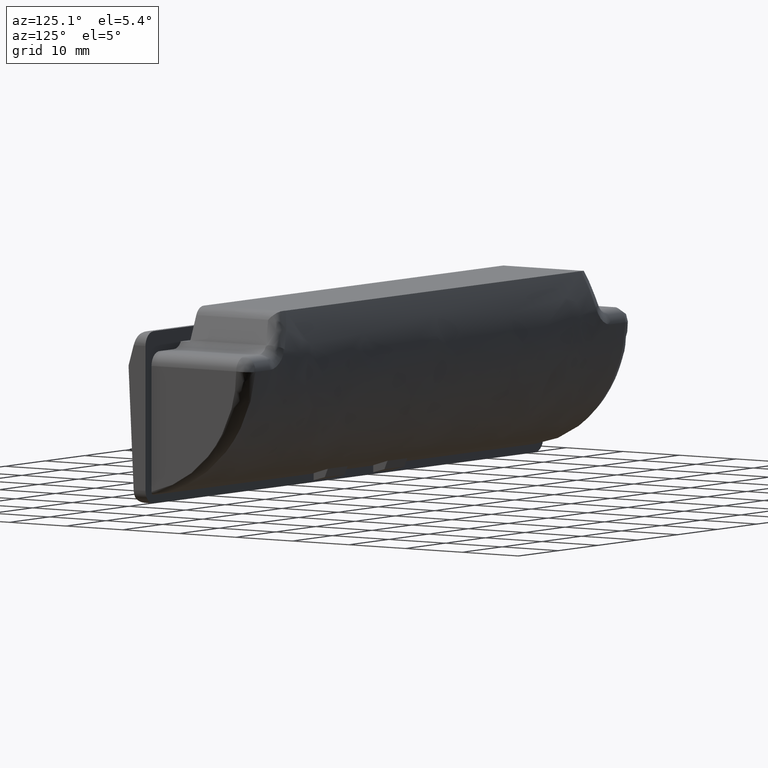
[diagram: clean part render]
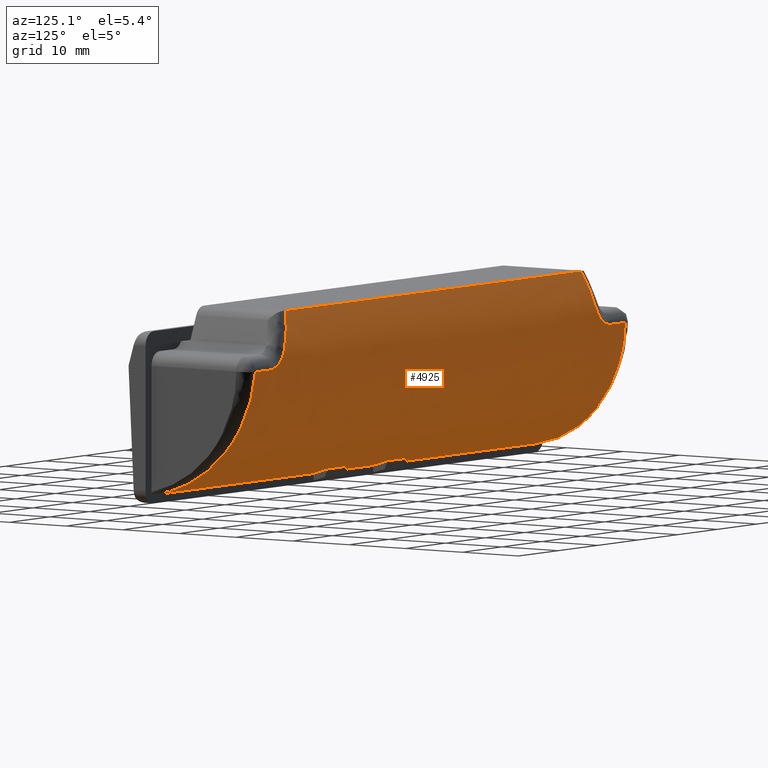
[diagram: same view with one face highlighted and labeled with its STEP entity id]
A machine part, auxiliary view. The second image highlights one B-rep face of the part: STEP entity #4925.
In plain terms, the highlighted face is a freeform B-spline surface patch.
Its self-contained STEP definition (entity closure, byte-faithful):
#2792=CARTESIAN_POINT('',(-47.999998401367399,0.0,-11.023720000000200));
#2793=VERTEX_POINT('',#2792);
#2807=CARTESIAN_POINT('',(-46.500000000000000,16.969111950679348,7.638888888888761));
#2808=VERTEX_POINT('',#2807);
#2827=CARTESIAN_POINT('',(-47.999998401367399,0.0,-11.023720000000200));
#2828=CARTESIAN_POINT('',(-47.874998534586453,2.248673816632060,-10.682558965602020));
#2829=CARTESIAN_POINT('',(-47.749998667805933,4.438089436433053,-9.954217447426700));
#2830=CARTESIAN_POINT('',(-47.499998934244751,8.447948616097063,-7.806491091659477));
#2831=CARTESIAN_POINT('',(-47.374999067464103,10.267491834275280,-6.387588487352834));
#2832=CARTESIAN_POINT('',(-47.124999333902927,13.327661002867540,-3.022018134561161));
#2833=CARTESIAN_POINT('',(-46.999999467122286,14.567599847390429,-1.076106064304717));
#2834=CARTESIAN_POINT('',(-46.749999733561097,16.325344698811499,3.119371522013153));
#2835=CARTESIAN_POINT('',(-46.624999866780591,16.842756035749950,5.367995019118455));
#2836=CARTESIAN_POINT('',(-46.499999999999993,16.969111950679359,7.638888888888809));
#2837=B_SPLINE_CURVE_WITH_KNOTS('',3,(#2827,#2828,#2829,#2830,#2831,#2832,#2833,#2834,#2835,#2836),.UNSPECIFIED.,.F.,.U.,(4,2,2,2,4),(0.0,0.250000000000000,0.500000000000000,0.750000000000000,1.0),.UNSPECIFIED.);
#2838=EDGE_CURVE('',#2793,#2808,#2837,.T.);
#2920=CARTESIAN_POINT('',(46.500000000000000,16.969111950679348,7.638888888888761));
#2921=VERTEX_POINT('',#2920);
#3010=CARTESIAN_POINT('',(47.999998401405797,0.0,-11.023720000000200));
#3011=VERTEX_POINT('',#3010);
#3024=CARTESIAN_POINT('',(46.499999999999993,16.969111950679359,7.638888888888809));
#3025=CARTESIAN_POINT('',(46.624999866783817,16.842756035749940,5.367995019118454));
#3026=CARTESIAN_POINT('',(46.749999733567762,16.325344698811499,3.119371522013153));
#3027=CARTESIAN_POINT('',(46.999999467135403,14.567599847390429,-1.076106064304717));
#3028=CARTESIAN_POINT('',(47.124999333919213,13.327661002867540,-3.022018134561161));
#3029=CARTESIAN_POINT('',(47.374999067486883,10.267491834275280,-6.387588487352831));
#3030=CARTESIAN_POINT('',(47.499998934270593,8.447948616097063,-7.806491091659475));
#3031=CARTESIAN_POINT('',(47.749998667838241,4.438089436433053,-9.954217447426700));
#3032=CARTESIAN_POINT('',(47.874998534622172,2.248673816632061,-10.682558965602009));
#3033=CARTESIAN_POINT('',(47.999998401406010,-9.894028E-009,-11.023719934786270));
#3034=B_SPLINE_CURVE_WITH_KNOTS('',3,(#3024,#3025,#3026,#3027,#3028,#3029,#3030,#3031,#3032,#3033),.UNSPECIFIED.,.F.,.U.,(4,2,2,2,4),(0.0,0.250000000000000,0.500000000000000,0.750000000000000,1.0),.UNSPECIFIED.);
#3035=EDGE_CURVE('',#2921,#3011,#3034,.T.);
#3058=CARTESIAN_POINT('',(42.833333750000143,16.969111950679348,7.638888888888761));
#3059=VERTEX_POINT('',#3058);
#3060=CARTESIAN_POINT('',(42.833333750000143,16.969111950679348,7.638888888888761));
#3061=CARTESIAN_POINT('',(46.500000000000000,16.969111950679348,7.638888888888761));
#3062=QUASI_UNIFORM_CURVE('',1,(#3060,#3061),.UNSPECIFIED.,.F.,.U.);
#3063=EDGE_CURVE('',#3059,#2921,#3062,.T.);
#3242=CARTESIAN_POINT('',(39.141025995948247,16.933962113589700,10.373931788582800));
#3243=VERTEX_POINT('',#3242);
#3285=CARTESIAN_POINT('',(42.833333750000143,16.969111950679348,7.638888888888761));
#3286=CARTESIAN_POINT('',(42.627431925233118,16.969111950679348,7.638888888888760));
#3287=CARTESIAN_POINT('',(42.423225788621480,16.970111820260069,7.656448987757167));
#3288=CARTESIAN_POINT('',(42.170057666508391,16.972422869026651,7.700047150386950));
#3289=CARTESIAN_POINT('',(42.119456013940983,16.972938103660081,7.709874409858300));
#3290=CARTESIAN_POINT('',(42.019214259036502,16.974054946182509,7.731546887290970));
#3291=CARTESIAN_POINT('',(41.969495823661632,16.974657111388460,7.743402343981979));
#3292=CARTESIAN_POINT('',(41.821519615738083,16.976575085933192,7.781955543043459));
#3293=CARTESIAN_POINT('',(41.724439157049169,16.978002869526630,7.811635567941810));
#3294=CARTESIAN_POINT('',(41.437752957141889,16.982558195184570,7.912220897415440));
#3295=CARTESIAN_POINT('',(41.252677841816329,16.985967602054629,7.994608780715571));
#3296=CARTESIAN_POINT('',(41.028776973850043,16.989978857941789,8.116485939915936));
#3297=CARTESIAN_POINT('',(40.984370921371379,16.990767805581640,8.141811015257138));
#3298=CARTESIAN_POINT('',(40.896312000777471,16.992297788595550,8.194373839745310));
#3299=CARTESIAN_POINT('',(40.852613371099068,16.993039442695942,8.221646973017824));
#3300=CARTESIAN_POINT('',(40.723830712223112,16.995139795650971,8.305571304210389));
#3301=CARTESIAN_POINT('',(40.640667728191701,16.996380932675169,8.364543770635475));
#3302=CARTESIAN_POINT('',(40.398876186667593,16.999383736504001,8.550105533583569));
#3303=CARTESIAN_POINT('',(40.247905165298839,17.000429437572230,8.685294409970716));
#3304=CARTESIAN_POINT('',(40.036104776976309,16.999536445125560,8.904541597202298));
#3305=CARTESIAN_POINT('',(39.967957827471459,16.998827572485169,8.980379751322120));
#3306=CARTESIAN_POINT('',(39.869421950809830,16.997005980656649,9.098276593436726));
#3307=CARTESIAN_POINT('',(39.837136763845884,16.996270416197010,9.138339883787074));
#3308=CARTESIAN_POINT('',(39.774244292486117,16.994534711187661,9.219276151244703));
#3309=CARTESIAN_POINT('',(39.743597966328657,16.993534372160589,9.260190512932025));
#3310=CARTESIAN_POINT('',(39.594268000444167,16.987830784643759,9.466936069999795));
#3311=CARTESIAN_POINT('',(39.487227181116609,16.981023291099209,9.639253383554712));
#3312=CARTESIAN_POINT('',(39.296558451969311,16.961898348802801,9.996867134732705));
#3313=CARTESIAN_POINT('',(39.212937523214002,16.949584286793812,10.182167694196471));
#3314=CARTESIAN_POINT('',(39.141025995948247,16.933962113589700,10.373931788582800));
#3315=B_SPLINE_CURVE_WITH_KNOTS('',3,(#3285,#3286,#3287,#3288,#3289,#3290,#3291,#3292,#3293,#3294,#3295,#3296,#3297,#3298,#3299,#3300,#3301,#3302,#3303,#3304,#3305,#3306,#3307,#3308,#3309,#3310,#3311,#3312,#3313,#3314),.UNSPECIFIED.,.F.,.U.,(4,2,2,2,2,2,2,2,2,2,2,2,2,2,4),(0.0,0.125000000000018,0.156250000000021,0.187500000000024,0.250000000000028,0.375000000000039,0.406250000000039,0.437500000000040,0.500000000000038,0.625000000000031,0.687500000000027,0.718750000000025,0.750000000000023,0.875000000000012,1.0),.UNSPECIFIED.);
#3316=EDGE_CURVE('',#3059,#3243,#3315,.T.);
#3435=CARTESIAN_POINT('',(37.125000644565247,15.734993995195250,15.750000000000000));
#3436=VERTEX_POINT('',#3435);
#3437=CARTESIAN_POINT('',(37.125000644565233,15.734993995195200,15.750000000000011));
#3438=CARTESIAN_POINT('',(38.101758919240780,16.708190100465014,13.145310973088971));
#3439=CARTESIAN_POINT('',(39.141025995948198,16.933962113589700,10.373931788583050));
#3447=(BOUNDED_CURVE()B_SPLINE_CURVE(2,(#3437,#3438,#3439),.UNSPECIFIED.,.F.,.U.)CURVE()GEOMETRIC_REPRESENTATION_ITEM()QUASI_UNIFORM_CURVE()RATIONAL_B_SPLINE_CURVE((1.0,0.990473487163246,1.0))REPRESENTATION_ITEM(''));
#3448=EDGE_CURVE('',#3436,#3243,#3447,.T.);
#3568=CARTESIAN_POINT('',(-42.833332749999897,16.969111950679348,7.638888888888761));
#3569=VERTEX_POINT('',#3568);
#3570=CARTESIAN_POINT('',(-46.500000000000000,16.969111950679348,7.638888888888761));
#3571=CARTESIAN_POINT('',(-42.833332749999897,16.969111950679348,7.638888888888761));
#3572=QUASI_UNIFORM_CURVE('',1,(#3570,#3571),.UNSPECIFIED.,.F.,.U.);
#3573=EDGE_CURVE('',#2808,#3569,#3572,.T.);
#3786=CARTESIAN_POINT('',(-39.141024995947902,16.933962113589700,10.373931788582899));
#3787=VERTEX_POINT('',#3786);
#3801=CARTESIAN_POINT('',(-39.141024995947902,16.933962113589700,10.373931788582899));
#3802=CARTESIAN_POINT('',(-39.212978687799477,16.949593446694720,10.182055255288301));
#3803=CARTESIAN_POINT('',(-39.297045812992707,16.961995429211310,9.995601680058684));
#3804=CARTESIAN_POINT('',(-39.441931155379677,16.976455287949729,9.724387188878094));
#3805=CARTESIAN_POINT('',(-39.493388126977237,16.980578970148279,9.635417216419850));
#3806=CARTESIAN_POINT('',(-39.601511444972921,16.987497354344502,9.462354644496703));
#3807=CARTESIAN_POINT('',(-39.658308972025040,16.990306841041001,9.378003107354591));
#3808=CARTESIAN_POINT('',(-39.836942073430940,16.997036404733599,9.131519377002594));
#3809=CARTESIAN_POINT('',(-39.966971338043450,16.999259616701082,8.975920563444864));
#3810=CARTESIAN_POINT('',(-40.179341626018733,17.000132896087461,8.756361457328886));
#3811=CARTESIAN_POINT('',(-40.253030470657372,17.000013034403558,8.685490425286382));
#3812=CARTESIAN_POINT('',(-40.406515440726039,16.999103310305941,8.548630575180651));
#3813=CARTESIAN_POINT('',(-40.485406571375812,16.998319365910010,8.483456868954486));
#3814=CARTESIAN_POINT('',(-40.728042209459119,16.995274063627861,8.297997868404575));
#3815=CARTESIAN_POINT('',(-40.897903828229630,16.992324470389541,8.187549256354437));
#3816=CARTESIAN_POINT('',(-41.165252603116123,16.987533326406979,8.042286309400884));
#3817=CARTESIAN_POINT('',(-41.256469909835410,16.985873360001388,7.997280558009842));
#3818=CARTESIAN_POINT('',(-41.443286307437162,16.982579226968060,7.914387674631294));
#3819=CARTESIAN_POINT('',(-41.539342965549032,16.980938430090429,7.876366155651625));
#3820=CARTESIAN_POINT('',(-41.829192859155413,16.976350041656652,7.775327964180945));
#3821=CARTESIAN_POINT('',(-42.025590036303967,16.973729575947502,7.724673999004395));
#3822=CARTESIAN_POINT('',(-42.424659344490138,16.970111054561631,7.656459397245462));
#3823=CARTESIAN_POINT('',(-42.627329598434528,16.969111950679348,7.638888888888761));
#3824=CARTESIAN_POINT('',(-42.833332749999897,16.969111950679348,7.638888888888761));
#3825=B_SPLINE_CURVE_WITH_KNOTS('',3,(#3801,#3802,#3803,#3804,#3805,#3806,#3807,#3808,#3809,#3810,#3811,#3812,#3813,#3814,#3815,#3816,#3817,#3818,#3819,#3820,#3821,#3822,#3823,#3824),.UNSPECIFIED.,.F.,.U.,(4,2,2,2,2,2,2,2,2,2,2,4),(0.0,0.124999999999997,0.187499999999995,0.249999999999993,0.374999999999992,0.437499999999992,0.499999999999992,0.624999999999991,0.687499999999992,0.749999999999994,0.874999999999997,1.0),.UNSPECIFIED.);
#3826=EDGE_CURVE('',#3787,#3569,#3825,.T.);
#3962=CARTESIAN_POINT('',(-37.124999644565051,15.734993995195250,15.750000000000000));
#3963=VERTEX_POINT('',#3962);
#3973=CARTESIAN_POINT('',(-39.141024995947937,16.933962113589711,10.373931788582910));
#3974=CARTESIAN_POINT('',(-38.101757919240605,16.708190100465035,13.145310973088822));
#3975=CARTESIAN_POINT('',(-37.124999644565129,15.734993995195261,15.749999999999851));
#3983=(BOUNDED_CURVE()B_SPLINE_CURVE(2,(#3973,#3974,#3975),.UNSPECIFIED.,.F.,.U.)CURVE()GEOMETRIC_REPRESENTATION_ITEM()QUASI_UNIFORM_CURVE()RATIONAL_B_SPLINE_CURVE((1.0,0.990473487163226,1.0))REPRESENTATION_ITEM(''));
#3984=EDGE_CURVE('',#3787,#3963,#3983,.T.);
#4402=CARTESIAN_POINT('',(5.0,1.600000000000110,-10.713812576162940));
#4403=VERTEX_POINT('',#4402);
#4404=CARTESIAN_POINT('',(5.000000000000120,4.099999993888905,-9.947326014347000));
#4405=VERTEX_POINT('',#4404);
#4406=CARTESIAN_POINT('',(5.0,1.600000000000110,-10.713812576162940));
#4407=CARTESIAN_POINT('',(5.000000000000120,2.875106905053540,-10.412458885035173));
#4408=CARTESIAN_POINT('',(5.000000000000120,4.099999993888909,-9.947326014347009));
#4416=(BOUNDED_CURVE()B_SPLINE_CURVE(2,(#4406,#4407,#4408),.UNSPECIFIED.,.F.,.U.)CURVE()GEOMETRIC_REPRESENTATION_ITEM()QUASI_UNIFORM_CURVE()RATIONAL_B_SPLINE_CURVE((1.0,0.997860993068771,1.0))REPRESENTATION_ITEM(''));
#4417=EDGE_CURVE('',#4403,#4405,#4416,.T.);
#4454=CARTESIAN_POINT('',(10.0,1.600000000000110,-10.713812576162940));
#4455=VERTEX_POINT('',#4454);
#4456=CARTESIAN_POINT('',(10.0,4.099999993888900,-9.947326014347020));
#4457=VERTEX_POINT('',#4456);
#4458=CARTESIAN_POINT('',(10.0,1.600000000000112,-10.713812576162949));
#4459=CARTESIAN_POINT('',(10.0,2.875106905053554,-10.412458885035170));
#4460=CARTESIAN_POINT('',(10.0,4.099999993888899,-9.947326014347016));
#4468=(BOUNDED_CURVE()B_SPLINE_CURVE(2,(#4458,#4459,#4460),.UNSPECIFIED.,.F.,.U.)CURVE()GEOMETRIC_REPRESENTATION_ITEM()QUASI_UNIFORM_CURVE()RATIONAL_B_SPLINE_CURVE((1.0,0.997860993068772,1.0))REPRESENTATION_ITEM(''));
#4469=EDGE_CURVE('',#4455,#4457,#4468,.T.);
#4513=CARTESIAN_POINT('',(10.0,1.600000000000110,-10.713812576162940));
#4514=CARTESIAN_POINT('',(5.0,1.600000000000110,-10.713812576162940));
#4515=QUASI_UNIFORM_CURVE('',1,(#4513,#4514),.UNSPECIFIED.,.F.,.U.);
#4516=EDGE_CURVE('',#4455,#4403,#4515,.T.);
#4552=CARTESIAN_POINT('',(10.0,4.099999993888900,-9.947326014347020));
#4553=CARTESIAN_POINT('',(5.000000000000120,4.099999993888905,-9.947326014347000));
#4554=QUASI_UNIFORM_CURVE('',1,(#4552,#4553),.UNSPECIFIED.,.F.,.U.);
#4555=EDGE_CURVE('',#4457,#4405,#4554,.T.);
#4567=CARTESIAN_POINT('',(-5.000000000000120,1.600000000000110,-10.713812576162940));
#4568=VERTEX_POINT('',#4567);
#4569=CARTESIAN_POINT('',(-5.0,4.099999993888910,-9.947326014347011));
#4570=VERTEX_POINT('',#4569);
#4571=CARTESIAN_POINT('',(-5.000000000000120,1.600000000000112,-10.713812576162949));
#4572=CARTESIAN_POINT('',(-5.000000000000120,2.875106905053547,-10.412458885035171));
#4573=CARTESIAN_POINT('',(-5.000000000000120,4.099999993888911,-9.947326014347009));
#4581=(BOUNDED_CURVE()B_SPLINE_CURVE(2,(#4571,#4572,#4573),.UNSPECIFIED.,.F.,.U.)CURVE()GEOMETRIC_REPRESENTATION_ITEM()QUASI_UNIFORM_CURVE()RATIONAL_B_SPLINE_CURVE((1.0,0.997860993068772,1.0))REPRESENTATION_ITEM(''));
#4582=EDGE_CURVE('',#4568,#4570,#4581,.T.);
#4619=CARTESIAN_POINT('',(-10.0,1.600000000000110,-10.713812576162940));
#4620=VERTEX_POINT('',#4619);
#4621=CARTESIAN_POINT('',(-10.0,4.099999993888900,-9.947326014347020));
#4622=VERTEX_POINT('',#4621);
#4623=CARTESIAN_POINT('',(-10.0,1.600000000000112,-10.713812576162949));
#4624=CARTESIAN_POINT('',(-10.0,2.875106905053554,-10.412458885035170));
#4625=CARTESIAN_POINT('',(-10.0,4.099999993888899,-9.947326014347016));
#4633=(BOUNDED_CURVE()B_SPLINE_CURVE(2,(#4623,#4624,#4625),.UNSPECIFIED.,.F.,.U.)CURVE()GEOMETRIC_REPRESENTATION_ITEM()QUASI_UNIFORM_CURVE()RATIONAL_B_SPLINE_CURVE((1.0,0.997860993068772,1.0))REPRESENTATION_ITEM(''));
#4634=EDGE_CURVE('',#4620,#4622,#4633,.T.);
#4672=CARTESIAN_POINT('',(-10.0,1.600000000000110,-10.713812576162940));
#4673=CARTESIAN_POINT('',(-5.000000000000120,1.600000000000110,-10.713812576162940));
#4674=QUASI_UNIFORM_CURVE('',1,(#4672,#4673),.UNSPECIFIED.,.F.,.U.);
#4675=EDGE_CURVE('',#4620,#4568,#4674,.T.);
#4719=CARTESIAN_POINT('',(-10.0,4.099999993888900,-9.947326014347020));
#4720=CARTESIAN_POINT('',(-5.0,4.099999993888910,-9.947326014347011));
#4721=QUASI_UNIFORM_CURVE('',1,(#4719,#4720),.UNSPECIFIED.,.F.,.U.);
#4722=EDGE_CURVE('',#4622,#4570,#4721,.T.);
#4850=CARTESIAN_POINT('',(-47.999998401367399,0.0,-11.023720000000200));
#4851=CARTESIAN_POINT('',(47.999998401405797,0.0,-11.023720000000200));
#4852=QUASI_UNIFORM_CURVE('',1,(#4850,#4851),.UNSPECIFIED.,.F.,.U.);
#4853=EDGE_CURVE('',#2793,#3011,#4852,.T.);
#4876=CARTESIAN_POINT('',(37.125000644565247,15.734993995195250,15.750000000000000));
#4877=CARTESIAN_POINT('',(-37.124999644565051,15.734993995195250,15.750000000000000));
#4878=QUASI_UNIFORM_CURVE('',1,(#4876,#4877),.UNSPECIFIED.,.F.,.U.);
#4879=EDGE_CURVE('',#3436,#3963,#4878,.T.);
#4887=CARTESIAN_POINT('',(-50.399998321436733,15.527034389696070,16.283192996533330));
#4888=CARTESIAN_POINT('',(50.459998319476867,15.527034389696070,16.283192996533330));
#4889=CARTESIAN_POINT('',(-50.399998321436726,25.879412872174605,-9.177308579397666));
#4890=CARTESIAN_POINT('',(50.459998319476881,25.879412872174605,-9.177308579397666));
#4891=CARTESIAN_POINT('',(-50.399998321436740,-1.531056616967451,-11.195982185328569));
#4892=CARTESIAN_POINT('',(50.459998319476874,-1.531056616967451,-11.195982185328569));
#4900=(BOUNDED_SURFACE()B_SPLINE_SURFACE(1,2,((#4887,#4889,#4891),(#4888,#4890,#4892)),.UNSPECIFIED.,.F.,.F.,.U.)B_SPLINE_SURFACE_WITH_KNOTS((2,2),(3,3),(0.0,100.859996640913590),(0.0,40.724632892998372),.UNSPECIFIED.)GEOMETRIC_REPRESENTATION_ITEM()RATIONAL_B_SPLINE_SURFACE(((1.0,0.588163408767166,0.999244380874987),(1.0,0.588163408767166,0.999244380874987)))REPRESENTATION_ITEM('')SURFACE());
#4901=ORIENTED_EDGE('',*,*,#4853,.F.);
#4902=ORIENTED_EDGE('',*,*,#2838,.T.);
#4903=ORIENTED_EDGE('',*,*,#3573,.T.);
#4904=ORIENTED_EDGE('',*,*,#3826,.F.);
#4905=ORIENTED_EDGE('',*,*,#3984,.T.);
#4906=ORIENTED_EDGE('',*,*,#4879,.F.);
#4907=ORIENTED_EDGE('',*,*,#3448,.T.);
#4908=ORIENTED_EDGE('',*,*,#3316,.F.);
#4909=ORIENTED_EDGE('',*,*,#3063,.T.);
#4910=ORIENTED_EDGE('',*,*,#3035,.T.);
#4911=EDGE_LOOP('',(#4901,#4902,#4903,#4904,#4905,#4906,#4907,#4908,#4909,#4910));
#4912=FACE_OUTER_BOUND('',#4911,.T.);
#4913=ORIENTED_EDGE('',*,*,#4722,.F.);
#4914=ORIENTED_EDGE('',*,*,#4634,.F.);
#4915=ORIENTED_EDGE('',*,*,#4675,.T.);
#4916=ORIENTED_EDGE('',*,*,#4582,.T.);
#4917=EDGE_LOOP('',(#4913,#4914,#4915,#4916));
#4918=FACE_BOUND('',#4917,.T.);
#4919=ORIENTED_EDGE('',*,*,#4516,.F.);
#4920=ORIENTED_EDGE('',*,*,#4469,.T.);
#4921=ORIENTED_EDGE('',*,*,#4555,.T.);
#4922=ORIENTED_EDGE('',*,*,#4417,.F.);
#4923=EDGE_LOOP('',(#4919,#4920,#4921,#4922));
#4924=FACE_BOUND('',#4923,.T.);
#4925=ADVANCED_FACE('',(#4912,#4918,#4924),#4900,.T.);